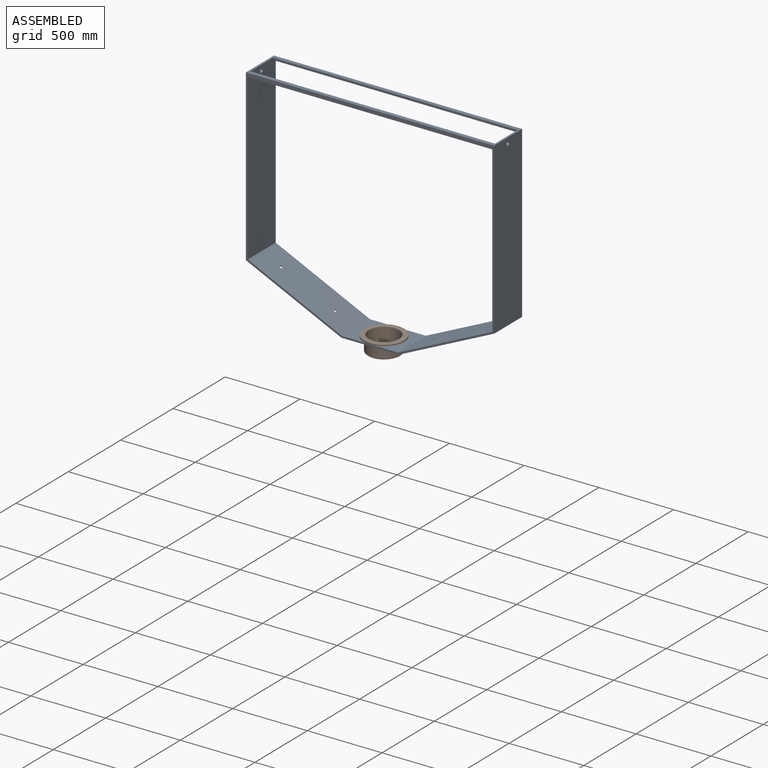
[diagram: assembled view]
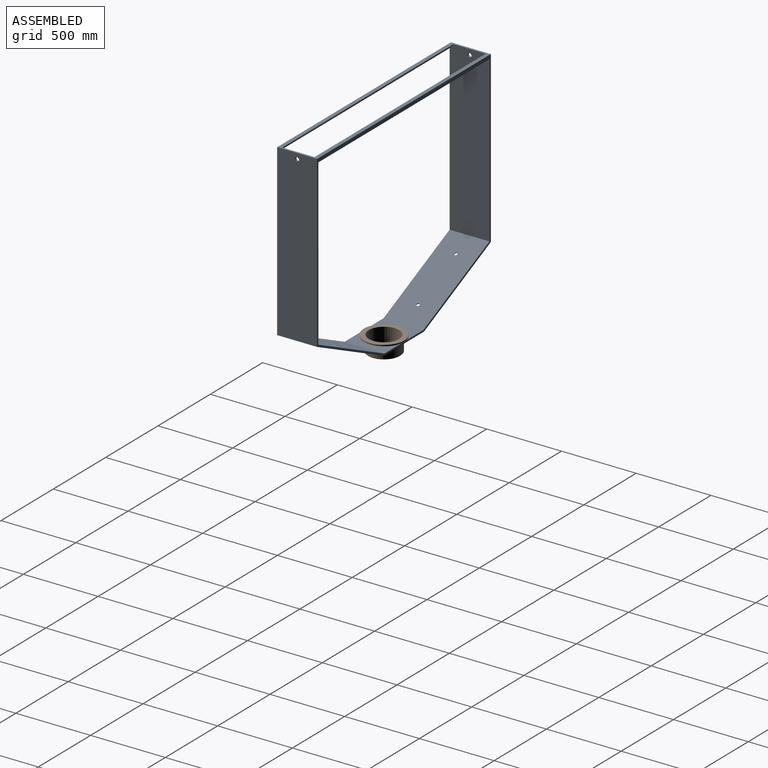
[diagram: assembled view, second angle]
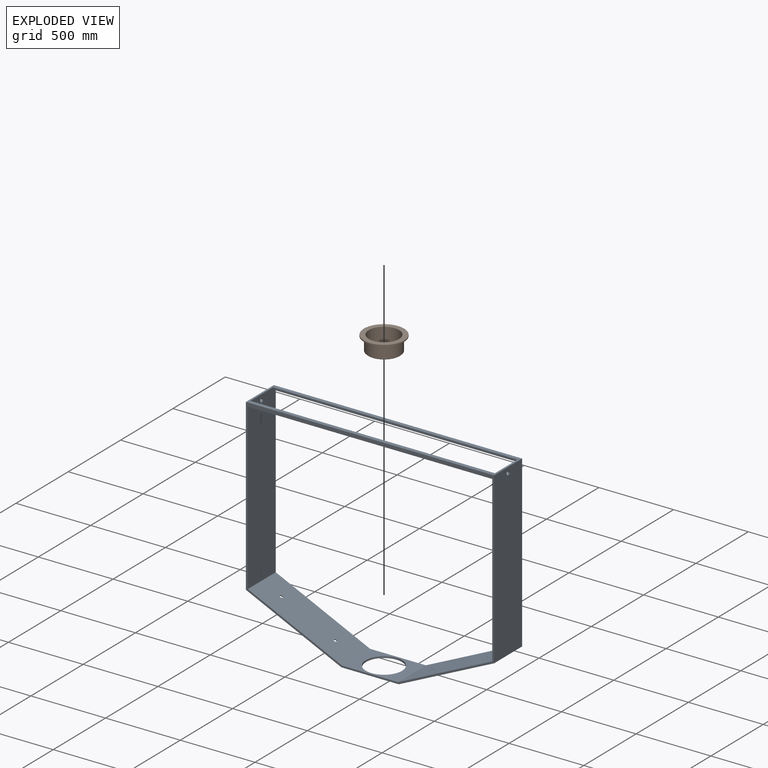
[diagram: exploded view]
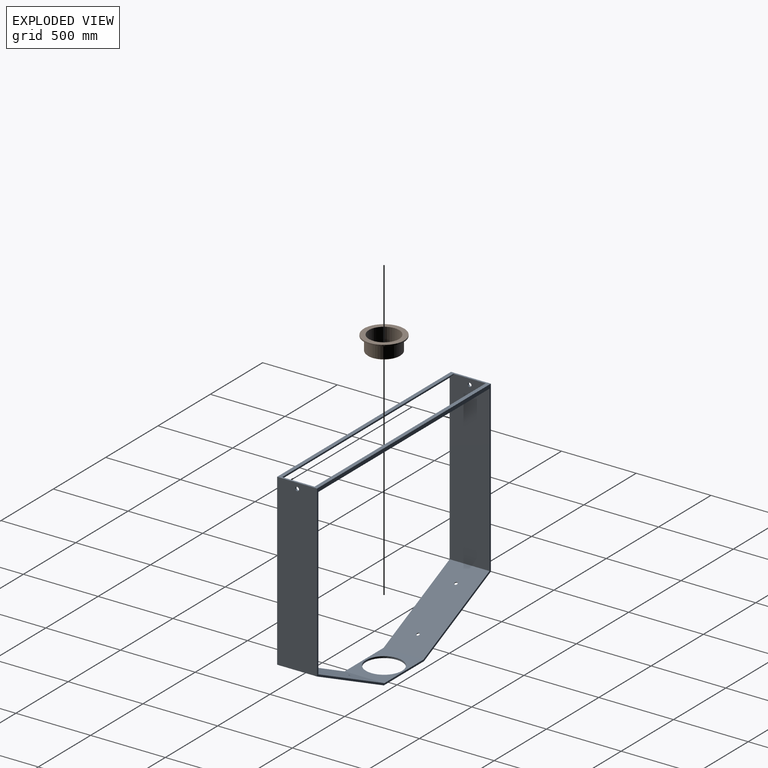
[diagram: exploded view, second angle]
ASSEMBLY  parts=2 mates=2
PART A: 32 faces, bbox 1661.1x266.7x1434.3 mm
  f0: plane 1128.48x266.7mm, normal (1,0,0), area 299895.1mm2, adj f2,f3,f5,f11,f14,f15,f16,f17
  f1: plane 631.2x294.33mm, normal (-0.42,0,0.91), area 185124.9mm2, adj f2,f3,f7,f13,f29,f30
  f2: plane 1661.07x1434.33mm, normal (0,1,0), area 92463.1mm2, adj f0,f1,f4,f5,f6,f7,f8,f10
  f3: plane 1661.07x1434.33mm, normal (0,-1,0), area 92463.1mm2, adj f0,f1,f4,f5,f6,f7,f8,f10
  f4: plane 638.53x297.75mm, normal (0.42,0,-0.91), area 185805.6mm2, adj f2,f3,f8,f12,f28,f31
  f5: plane 631.2x294.33mm, normal (0.42,0,0.91), area 185124.9mm2, adj f0,f2,f3,f7,f25,f27
  f6: plane 638.53x297.75mm, normal (-0.42,0,-0.91), area 185805.6mm2, adj f2,f3,f8,f10,f24,f26
  f7: plane 373.27x266.7mm, normal (0,0,1), area 53629.3mm2, adj f1,f2,f3,f5,f9
  f8: plane 384.01x266.7mm, normal (0,0,-1), area 56492.1mm2, adj f2,f3,f4,f6,f9
  f9: cylinder r=120.9mm len=241.81mm, axis (0,0,1), area 8743.8mm2, adj f7,f8
  f10: plane 1136.57x266.7mm, normal (-1,0,0), area 302617.4mm2, adj f2,f3,f6,f11,f23
  f11: plane 1661.07x266.7mm, normal (0,0,1), area 89866.3mm2, adj f0,f2,f3,f10,f12,f13,f17,f18
  f12: plane 1136.57x266.7mm, normal (1,0,0), area 302617.4mm2, adj f2,f3,f4,f11,f22
  f13: plane 1128.48x266.7mm, normal (-1,0,0), area 299895.1mm2, adj f1,f2,f3,f11,f14,f15,f16,f17
  f14: plane 1635.67x6.35mm, normal (0,0,-1), area 10386.5mm2, adj f0,f3,f13,f15
  f15: plane 1635.67x19.05mm, normal (0,1,0), area 31159.5mm2, adj f0,f13,f14,f16
  f16: plane 1635.67x19.05mm, normal (0,0,-1), area 31159.5mm2, adj f0,f13,f15,f17
  f17: plane 1635.67x6.35mm, normal (0,1,0), area 10386.5mm2, adj f0,f11,f13,f16
  f18: plane 1635.67x6.35mm, normal (0,-1,0), area 10386.5mm2, adj f0,f11,f13,f19
  f19: plane 1635.67x19.05mm, normal (0,0,-1), area 31159.5mm2, adj f0,f13,f18,f20
  f20: plane 1635.67x19.05mm, normal (0,-1,0), area 31159.5mm2, adj f0,f13,f19,f21
  f21: plane 1635.67x6.35mm, normal (0,0,-1), area 10386.5mm2, adj f0,f2,f13,f20
  f22: cylinder r=12.7mm len=25.4mm, axis (1,0,0), area 1013.4mm2, adj f12,f13
  f23: cylinder r=12.7mm len=25.4mm, axis (1,0,0), area 1013.4mm2, adj f0,f10
  f24: cone r=9.92mm half-angle=45deg, axis (-0.42,0,-0.91), area 1044.5mm2, adj f6,f25
  f25: cylinder r=9.92mm len=19.84mm, axis (-0.42,0,-0.91), area 271.7mm2, adj f5,f24
  f26: cone r=9.92mm half-angle=45deg, axis (-0.42,0,-0.91), area 1044.5mm2, adj f6,f27
  f27: cylinder r=9.92mm len=19.84mm, axis (-0.42,0,-0.91), area 271.7mm2, adj f5,f26
  f28: cone r=9.92mm half-angle=45deg, axis (0.42,0,-0.91), area 1044.5mm2, adj f4,f29
  f29: cylinder r=9.92mm len=19.84mm, axis (0.42,0,-0.91), area 271.7mm2, adj f1,f28
  f30: cylinder r=9.92mm len=19.84mm, axis (0.42,0,-0.91), area 271.7mm2, adj f1,f31
  f31: cone r=9.92mm half-angle=45deg, axis (0.42,0,-0.91), area 1044.5mm2, adj f4,f30
PART B: 9 faces, bbox 284.1x284.1x101.6 mm
  f0: torus R=122.24mm, axis (0,0,1), area 7154.2mm2, adj f4,f7,f8
  f1: cylinder r=101.36mm len=202.72mm, axis (0,0,1), area 64704.5mm2, adj f5,f6
  f2: cylinder r=134.94mm len=269.88mm, axis (0,0,-1), area 6934.3mm2, adj f5,f7
  f3: cone r=109.54mm half-angle=45deg, axis (0,0,-1), area 3906mm2, adj f4,f6
  f4: cylinder r=109.54mm len=219.08mm, axis (0,0,-1), area 52741.4mm2, adj f0,f3,f8
  f5: plane 269.88x269.88mm, normal (0,0,-1), area 24927.1mm2, adj f1,f2
  f6: plane 210.9x210.9mm, normal (0,0,1), area 2656.9mm2, adj f1,f3
  f7: plane 269.88x269.88mm, normal (0,0,1), area 10260.8mm2, adj f0,f2,f8
  f8: torus R=122.24mm, axis (0,0,1), area 7154.2mm2, adj f0,f4,f7
PLACE A t=(0,0,45.26)mm
PLACE B rot(axis=(1,0,0),180deg) t=(-1084.66,-146.05,71.45)mm
MATE slider B.f1 <-> A.f9  axis (0,0,1) through (-1084.66,-146.05,12.25)mm
MATE planar A.f9 <-> B.f0  axis (0,0,1) through (-1084.66,-146.05,63.27)mm
